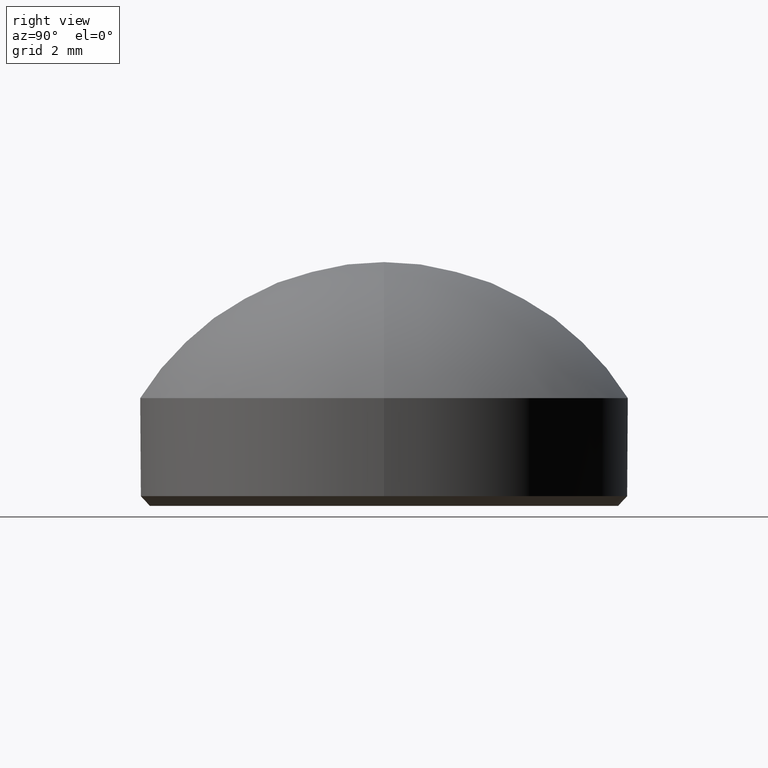
[diagram: clean part render]
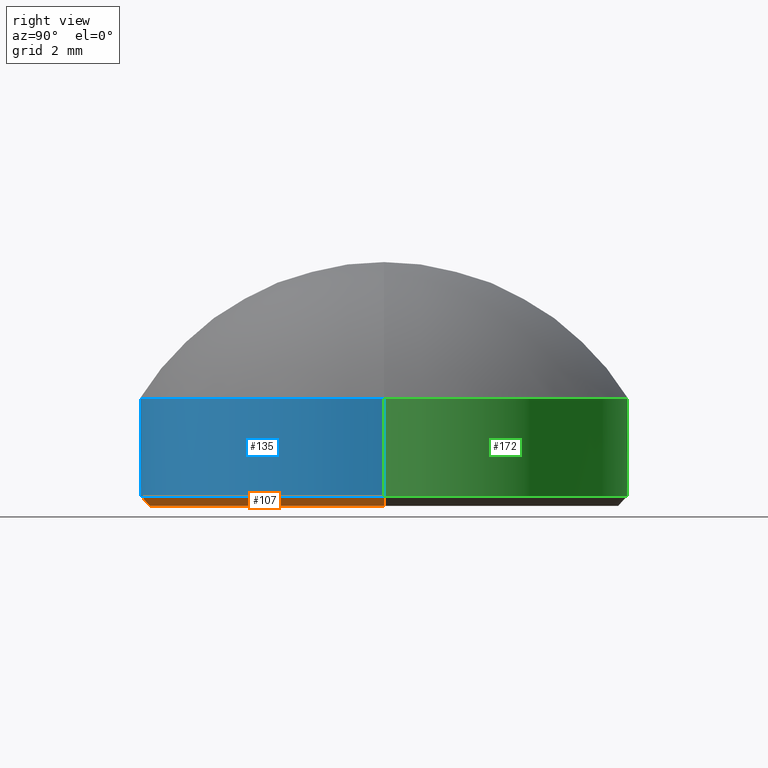
[diagram: same view with three faces highlighted in distinct colors, each labeled with its STEP entity id]
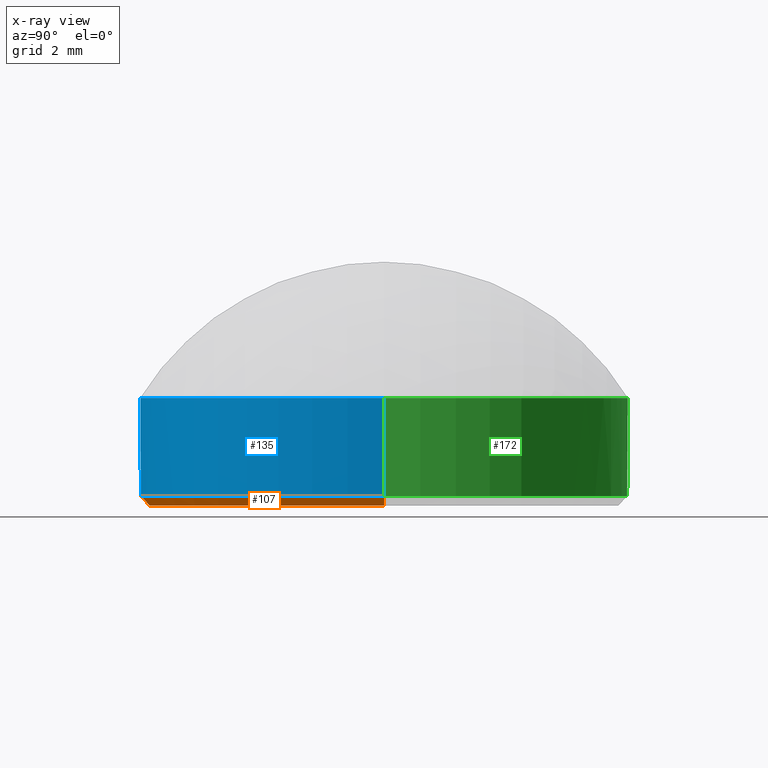
[diagram: x-ray of the same camera — body ghosted, the three highlighted faces saturated]
A machine part, right view with three faces highlighted in distinct colors.
The next image is the same camera in x-ray (body ghosted, the three faces saturated) — at least one of them is partly hidden behind the body in this view.
Their STEP definitions:

[orange] entity #107 — the highlighted conical surface has half-angle 45 deg.
#1 = ORIENTED_EDGE ( 'NONE', *, *, #149, .F. ) ;
#3 = CONICAL_SURFACE ( 'NONE', #128, 5.000000000000000000, 0.7853981633974504994 ) ;
#5 = LINE ( 'NONE', #79, #148 ) ;
#6 = EDGE_CURVE ( 'NONE', #87, #150, #80, .T. ) ;
#7 = DIRECTION ( 'NONE',  ( 1.000000000000000000, 0.000000000000000000, 0.000000000000000000 ) ) ;
#19 = CARTESIAN_POINT ( 'NONE',  ( 0.000000000000000000, 0.000000000000000000, 0.1999999999999987899 ) ) ;
#35 = VERTEX_POINT ( 'NONE', #55 ) ;
#37 = EDGE_CURVE ( 'NONE', #48, #35, #49, .T. ) ;
#48 = VERTEX_POINT ( 'NONE', #184 ) ;
#49 = CIRCLE ( 'NONE', #74, 4.800000000000000711 ) ;
#55 = CARTESIAN_POINT ( 'NONE',  ( -4.800000000000000711, 6.000769315822031726E-16, 0.000000000000000000 ) ) ;
#68 = CARTESIAN_POINT ( 'NONE',  ( 0.000000000000000000, 0.000000000000000000, 0.000000000000000000 ) ) ;
#72 = DIRECTION ( 'NONE',  ( -0.000000000000000000, -0.000000000000000000, 1.000000000000000000 ) ) ;
#74 = AXIS2_PLACEMENT_3D ( 'NONE', #68, #116, #215 ) ;
#79 = CARTESIAN_POINT ( 'NONE',  ( 5.000000000000000000, 0.000000000000000000, 0.1999999999999987899 ) ) ;
#80 = CIRCLE ( 'NONE', #194, 5.000000000000000000 ) ;
#87 = VERTEX_POINT ( 'NONE', #191 ) ;
#92 = FACE_OUTER_BOUND ( 'NONE', #113, .T. ) ;
#107 = ADVANCED_FACE ( 'NONE', ( #92 ), #3, .T. ) ;
#109 = CARTESIAN_POINT ( 'NONE',  ( -5.000000000000000000, 6.123233995736766282E-16, 0.1999999999999987899 ) ) ;
#113 = EDGE_LOOP ( 'NONE', ( #1, #183, #115, #166 ) ) ;
#115 = ORIENTED_EDGE ( 'NONE', *, *, #127, .T. ) ;
#116 = DIRECTION ( 'NONE',  ( -0.000000000000000000, -0.000000000000000000, -1.000000000000000000 ) ) ;
#117 = DIRECTION ( 'NONE',  ( 1.000000000000000000, 0.000000000000000000, 0.000000000000000000 ) ) ;
#127 = EDGE_CURVE ( 'NONE', #48, #150, #5, .T. ) ;
#128 = AXIS2_PLACEMENT_3D ( 'NONE', #206, #156, #7 ) ;
#137 = LINE ( 'NONE', #109, #210 ) ;
#148 = VECTOR ( 'NONE', #187, 1000.000000000000114 ) ;
#149 = EDGE_CURVE ( 'NONE', #35, #87, #137, .T. ) ;
#150 = VERTEX_POINT ( 'NONE', #190 ) ;
#156 = DIRECTION ( 'NONE',  ( -0.000000000000000000, -0.000000000000000000, 1.000000000000000000 ) ) ;
#166 = ORIENTED_EDGE ( 'NONE', *, *, #6, .F. ) ;
#183 = ORIENTED_EDGE ( 'NONE', *, *, #37, .F. ) ;
#184 = CARTESIAN_POINT ( 'NONE',  ( 4.800000000000000711, 0.000000000000000000, 0.000000000000000000 ) ) ;
#187 = DIRECTION ( 'NONE',  ( 0.7071067811865490160, 0.000000000000000000, 0.7071067811865460184 ) ) ;
#190 = CARTESIAN_POINT ( 'NONE',  ( 5.000000000000000000, 6.123233995736766282E-16, 0.1999999999999987899 ) ) ;
#191 = CARTESIAN_POINT ( 'NONE',  ( -5.000000000000000000, 0.000000000000000000, 0.1999999999999987899 ) ) ;
#192 = DIRECTION ( 'NONE',  ( -0.7071067811865490160, 8.659560562354953812E-17, 0.7071067811865460184 ) ) ;
#194 = AXIS2_PLACEMENT_3D ( 'NONE', #19, #72, #117 ) ;
#206 = CARTESIAN_POINT ( 'NONE',  ( 0.000000000000000000, 0.000000000000000000, 0.1999999999999987899 ) ) ;
#210 = VECTOR ( 'NONE', #192, 1000.000000000000114 ) ;
#215 = DIRECTION ( 'NONE',  ( 1.000000000000000000, 0.000000000000000000, 0.000000000000000000 ) ) ;

[blue] entity #135 — the highlighted cylindrical surface (partial cylindrical patch) has radius 5 mm, axis along (-0, -0, -1).
#6 = EDGE_CURVE ( 'NONE', #87, #150, #80, .T. ) ;
#9 = CARTESIAN_POINT ( 'NONE',  ( -5.000000000000000000, 0.000000000000000000, 2.209999999999999964 ) ) ;
#14 = ORIENTED_EDGE ( 'NONE', *, *, #6, .T. ) ;
#19 = CARTESIAN_POINT ( 'NONE',  ( 0.000000000000000000, 0.000000000000000000, 0.1999999999999987899 ) ) ;
#25 = AXIS2_PLACEMENT_3D ( 'NONE', #154, #139, #93 ) ;
#27 = DIRECTION ( 'NONE',  ( -0.000000000000000000, -0.000000000000000000, -1.000000000000000000 ) ) ;
#40 = LINE ( 'NONE', #73, #143 ) ;
#44 = CARTESIAN_POINT ( 'NONE',  ( 5.000000000000000000, 6.123233995736766282E-16, 2.209999999999999964 ) ) ;
#56 = LINE ( 'NONE', #9, #129 ) ;
#60 = EDGE_CURVE ( 'NONE', #66, #87, #56, .T. ) ;
#66 = VERTEX_POINT ( 'NONE', #77 ) ;
#72 = DIRECTION ( 'NONE',  ( -0.000000000000000000, -0.000000000000000000, 1.000000000000000000 ) ) ;
#73 = CARTESIAN_POINT ( 'NONE',  ( 5.000000000000000000, 6.123233995736766282E-16, 2.209999999999999964 ) ) ;
#75 = CARTESIAN_POINT ( 'NONE',  ( 0.000000000000000000, 0.000000000000000000, 2.209999999999999964 ) ) ;
#76 = DIRECTION ( 'NONE',  ( -1.000000000000000000, 0.000000000000000000, 0.000000000000000000 ) ) ;
#77 = CARTESIAN_POINT ( 'NONE',  ( -5.000000000000000000, 0.000000000000000000, 2.209999999999999964 ) ) ;
#78 = EDGE_CURVE ( 'NONE', #66, #201, #168, .T. ) ;
#80 = CIRCLE ( 'NONE', #194, 5.000000000000000000 ) ;
#86 = ORIENTED_EDGE ( 'NONE', *, *, #60, .T. ) ;
#87 = VERTEX_POINT ( 'NONE', #191 ) ;
#88 = AXIS2_PLACEMENT_3D ( 'NONE', #75, #110, #76 ) ;
#91 = DIRECTION ( 'NONE',  ( -0.000000000000000000, -0.000000000000000000, -1.000000000000000000 ) ) ;
#93 = DIRECTION ( 'NONE',  ( 1.000000000000000000, 0.000000000000000000, 0.000000000000000000 ) ) ;
#96 = EDGE_LOOP ( 'NONE', ( #101, #114, #86, #14 ) ) ;
#101 = ORIENTED_EDGE ( 'NONE', *, *, #164, .F. ) ;
#110 = DIRECTION ( 'NONE',  ( -0.000000000000000000, -0.000000000000000000, -1.000000000000000000 ) ) ;
#114 = ORIENTED_EDGE ( 'NONE', *, *, #78, .F. ) ;
#117 = DIRECTION ( 'NONE',  ( 1.000000000000000000, 0.000000000000000000, 0.000000000000000000 ) ) ;
#122 = CYLINDRICAL_SURFACE ( 'NONE', #88, 5.000000000000000000 ) ;
#129 = VECTOR ( 'NONE', #91, 1000.000000000000000 ) ;
#135 = ADVANCED_FACE ( 'NONE', ( #173 ), #122, .T. ) ;
#139 = DIRECTION ( 'NONE',  ( 0.000000000000000000, 0.000000000000000000, 1.000000000000000000 ) ) ;
#143 = VECTOR ( 'NONE', #27, 1000.000000000000000 ) ;
#150 = VERTEX_POINT ( 'NONE', #190 ) ;
#154 = CARTESIAN_POINT ( 'NONE',  ( 0.000000000000000000, 0.000000000000000000, 2.209999999999999964 ) ) ;
#164 = EDGE_CURVE ( 'NONE', #201, #150, #40, .T. ) ;
#168 = CIRCLE ( 'NONE', #25, 5.000000000000000000 ) ;
#173 = FACE_OUTER_BOUND ( 'NONE', #96, .T. ) ;
#190 = CARTESIAN_POINT ( 'NONE',  ( 5.000000000000000000, 6.123233995736766282E-16, 0.1999999999999987899 ) ) ;
#191 = CARTESIAN_POINT ( 'NONE',  ( -5.000000000000000000, 0.000000000000000000, 0.1999999999999987899 ) ) ;
#194 = AXIS2_PLACEMENT_3D ( 'NONE', #19, #72, #117 ) ;
#201 = VERTEX_POINT ( 'NONE', #44 ) ;

[green] entity #172 — the highlighted cylindrical surface (partial cylindrical patch) has radius 5 mm, axis along (-0, -0, -1).
#9 = CARTESIAN_POINT ( 'NONE',  ( -5.000000000000000000, 0.000000000000000000, 2.209999999999999964 ) ) ;
#23 = CYLINDRICAL_SURFACE ( 'NONE', #95, 5.000000000000000000 ) ;
#27 = DIRECTION ( 'NONE',  ( -0.000000000000000000, -0.000000000000000000, -1.000000000000000000 ) ) ;
#40 = LINE ( 'NONE', #73, #143 ) ;
#41 = CARTESIAN_POINT ( 'NONE',  ( 0.000000000000000000, 0.000000000000000000, 2.209999999999999964 ) ) ;
#43 = EDGE_CURVE ( 'NONE', #201, #66, #216, .T. ) ;
#44 = CARTESIAN_POINT ( 'NONE',  ( 5.000000000000000000, 6.123233995736766282E-16, 2.209999999999999964 ) ) ;
#56 = LINE ( 'NONE', #9, #129 ) ;
#59 = FACE_OUTER_BOUND ( 'NONE', #163, .T. ) ;
#60 = EDGE_CURVE ( 'NONE', #66, #87, #56, .T. ) ;
#66 = VERTEX_POINT ( 'NONE', #77 ) ;
#69 = ORIENTED_EDGE ( 'NONE', *, *, #60, .F. ) ;
#71 = DIRECTION ( 'NONE',  ( 0.000000000000000000, 0.000000000000000000, 1.000000000000000000 ) ) ;
#73 = CARTESIAN_POINT ( 'NONE',  ( 5.000000000000000000, 6.123233995736766282E-16, 2.209999999999999964 ) ) ;
#77 = CARTESIAN_POINT ( 'NONE',  ( -5.000000000000000000, 0.000000000000000000, 2.209999999999999964 ) ) ;
#83 = EDGE_CURVE ( 'NONE', #150, #87, #197, .T. ) ;
#87 = VERTEX_POINT ( 'NONE', #191 ) ;
#91 = DIRECTION ( 'NONE',  ( -0.000000000000000000, -0.000000000000000000, -1.000000000000000000 ) ) ;
#95 = AXIS2_PLACEMENT_3D ( 'NONE', #41, #121, #171 ) ;
#99 = AXIS2_PLACEMENT_3D ( 'NONE', #108, #188, #136 ) ;
#102 = ORIENTED_EDGE ( 'NONE', *, *, #83, .T. ) ;
#108 = CARTESIAN_POINT ( 'NONE',  ( 0.000000000000000000, 0.000000000000000000, 0.1999999999999987899 ) ) ;
#120 = ORIENTED_EDGE ( 'NONE', *, *, #164, .T. ) ;
#121 = DIRECTION ( 'NONE',  ( -0.000000000000000000, -0.000000000000000000, -1.000000000000000000 ) ) ;
#129 = VECTOR ( 'NONE', #91, 1000.000000000000000 ) ;
#133 = DIRECTION ( 'NONE',  ( 1.000000000000000000, 0.000000000000000000, 0.000000000000000000 ) ) ;
#136 = DIRECTION ( 'NONE',  ( 1.000000000000000000, 0.000000000000000000, 0.000000000000000000 ) ) ;
#143 = VECTOR ( 'NONE', #27, 1000.000000000000000 ) ;
#150 = VERTEX_POINT ( 'NONE', #190 ) ;
#163 = EDGE_LOOP ( 'NONE', ( #169, #120, #102, #69 ) ) ;
#164 = EDGE_CURVE ( 'NONE', #201, #150, #40, .T. ) ;
#169 = ORIENTED_EDGE ( 'NONE', *, *, #43, .F. ) ;
#171 = DIRECTION ( 'NONE',  ( -1.000000000000000000, 0.000000000000000000, 0.000000000000000000 ) ) ;
#172 = ADVANCED_FACE ( 'NONE', ( #59 ), #23, .T. ) ;
#185 = AXIS2_PLACEMENT_3D ( 'NONE', #186, #71, #133 ) ;
#186 = CARTESIAN_POINT ( 'NONE',  ( 0.000000000000000000, 0.000000000000000000, 2.209999999999999964 ) ) ;
#188 = DIRECTION ( 'NONE',  ( -0.000000000000000000, -0.000000000000000000, 1.000000000000000000 ) ) ;
#190 = CARTESIAN_POINT ( 'NONE',  ( 5.000000000000000000, 6.123233995736766282E-16, 0.1999999999999987899 ) ) ;
#191 = CARTESIAN_POINT ( 'NONE',  ( -5.000000000000000000, 0.000000000000000000, 0.1999999999999987899 ) ) ;
#197 = CIRCLE ( 'NONE', #99, 5.000000000000000000 ) ;
#201 = VERTEX_POINT ( 'NONE', #44 ) ;
#216 = CIRCLE ( 'NONE', #185, 5.000000000000000000 ) ;